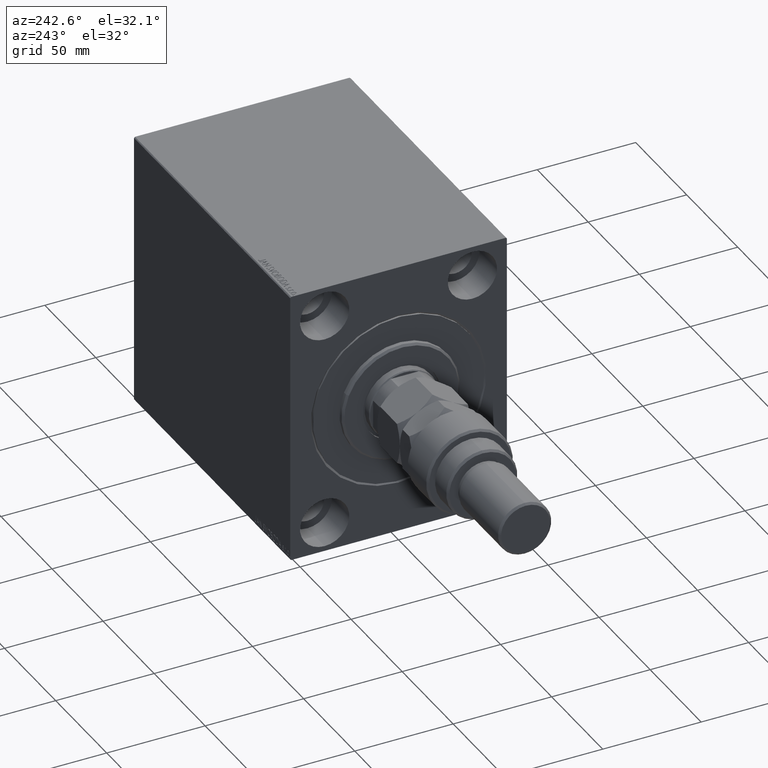
[diagram: clean part render]
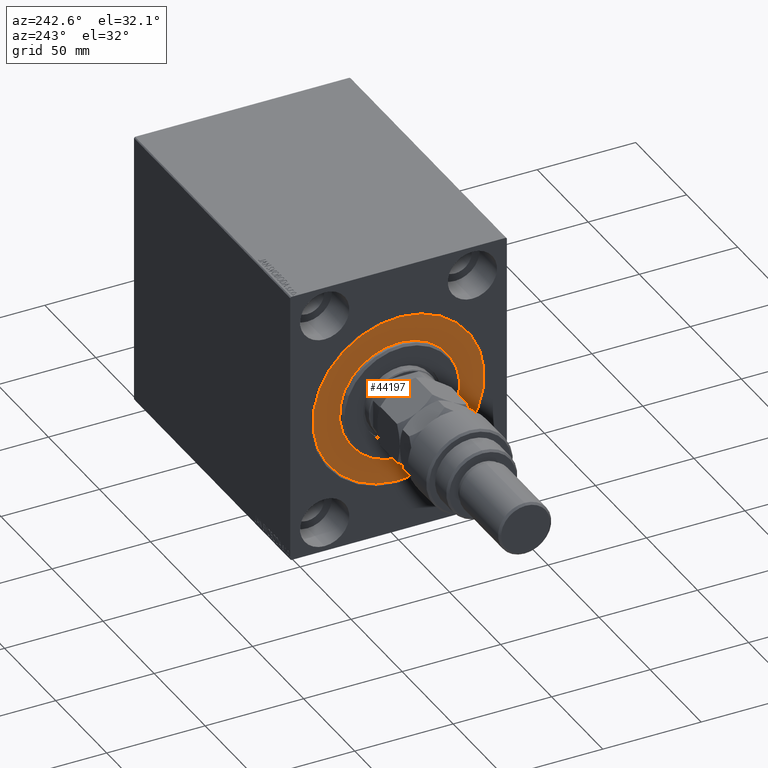
[diagram: same view with one face highlighted and labeled with its STEP entity id]
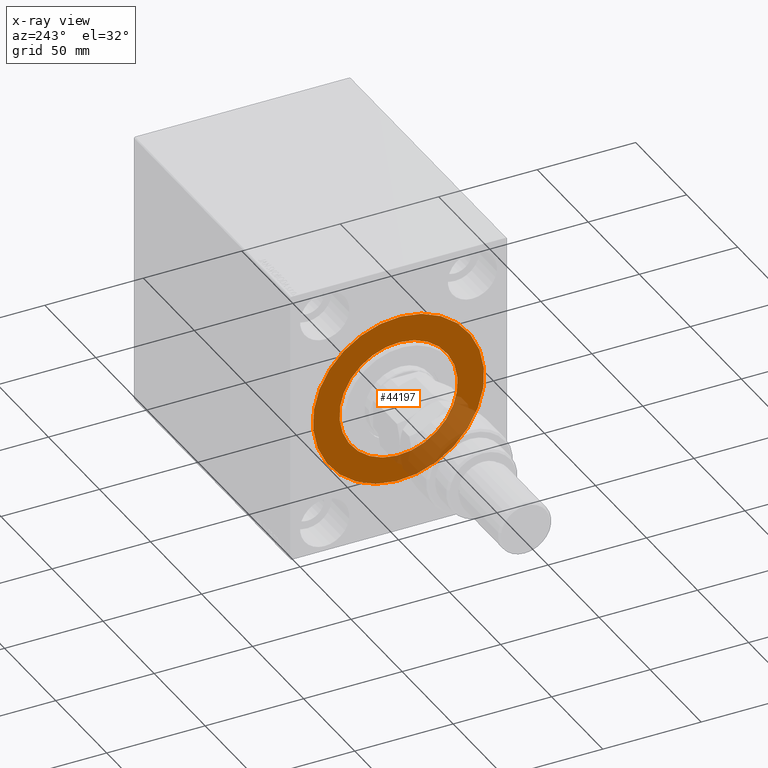
[diagram: x-ray of the same camera — body ghosted, the highlighted face saturated]
A machine part, auxiliary view. The second image highlights one B-rep face of the part: STEP entity #44197.
The next image is the same camera in x-ray: the body ghosted, the highlighted face saturated — about 19% of this face is hidden behind the body in this view.
In plain terms, the highlighted planar face has unit normal (1, 0, -0).
Its self-contained STEP definition (entity closure, byte-faithful):
#1657 = ORIENTED_EDGE ( 'NONE', *, *, #43882, .F. ) ;
#2422 = CIRCLE ( 'NONE', #30319, 43.50000000000000000 ) ;
#4451 = VERTEX_POINT ( 'NONE', #7047 ) ;
#5308 = CARTESIAN_POINT ( 'NONE',  ( 0.000000000000000000, 0.000000000000000000, 0.000000000000000000 ) ) ;
#6035 = EDGE_CURVE ( 'NONE', #4451, #34801, #2422, .T. ) ;
#6601 = CARTESIAN_POINT ( 'NONE',  ( 0.000000000000000000, 0.000000000000000000, 0.000000000000000000 ) ) ;
#6615 = AXIS2_PLACEMENT_3D ( 'NONE', #6601, #43187, #9910 ) ;
#7047 = CARTESIAN_POINT ( 'NONE',  ( 0.000000000000000000, 0.000000000000000000, -43.50000000000000000 ) ) ;
#9059 = VERTEX_POINT ( 'NONE', #20863 ) ;
#9530 = DIRECTION ( 'NONE',  ( 1.000000000000000000, -0.000000000000000000, 0.000000000000000000 ) ) ;
#9910 = DIRECTION ( 'NONE',  ( 0.000000000000000000, 0.000000000000000000, 1.000000000000000000 ) ) ;
#15700 = DIRECTION ( 'NONE',  ( 0.000000000000000000, 0.000000000000000000, -1.000000000000000000 ) ) ;
#15931 = DIRECTION ( 'NONE',  ( 1.000000000000000000, -0.000000000000000000, 0.000000000000000000 ) ) ;
#15932 = VERTEX_POINT ( 'NONE', #18954 ) ;
#16802 = DIRECTION ( 'NONE',  ( -1.000000000000000000, 0.000000000000000000, 0.000000000000000000 ) ) ;
#17591 = AXIS2_PLACEMENT_3D ( 'NONE', #31429, #16802, #20589 ) ;
#18474 = CIRCLE ( 'NONE', #30558, 30.00000000000000000 ) ;
#18482 = EDGE_CURVE ( 'NONE', #15932, #9059, #18474, .T. ) ;
#18954 = CARTESIAN_POINT ( 'NONE',  ( 0.000000000000000000, 0.000000000000000000, 30.00000000000000000 ) ) ;
#20589 = DIRECTION ( 'NONE',  ( 0.000000000000000000, 0.000000000000000000, 1.000000000000000000 ) ) ;
#20863 = CARTESIAN_POINT ( 'NONE',  ( 0.000000000000000000, 3.673940397442059178E-15, -30.00000000000000000 ) ) ;
#22122 = AXIS2_PLACEMENT_3D ( 'NONE', #5308, #15931, #15700 ) ;
#22476 = CIRCLE ( 'NONE', #6615, 43.50000000000000000 ) ;
#23716 = DIRECTION ( 'NONE',  ( 0.000000000000000000, 0.000000000000000000, -1.000000000000000000 ) ) ;
#25271 = EDGE_CURVE ( 'NONE', #34801, #4451, #22476, .T. ) ;
#27301 = EDGE_LOOP ( 'NONE', ( #29281, #46688 ) ) ;
#29281 = ORIENTED_EDGE ( 'NONE', *, *, #6035, .F. ) ;
#30319 = AXIS2_PLACEMENT_3D ( 'NONE', #34140, #41003, #37455 ) ;
#30411 = CIRCLE ( 'NONE', #22122, 30.00000000000000000 ) ;
#30558 = AXIS2_PLACEMENT_3D ( 'NONE', #30783, #9530, #23716 ) ;
#30783 = CARTESIAN_POINT ( 'NONE',  ( 0.000000000000000000, 0.000000000000000000, 0.000000000000000000 ) ) ;
#31429 = CARTESIAN_POINT ( 'NONE',  ( 0.000000000000000000, 0.000000000000000000, 0.000000000000000000 ) ) ;
#34140 = CARTESIAN_POINT ( 'NONE',  ( 0.000000000000000000, 0.000000000000000000, 0.000000000000000000 ) ) ;
#34801 = VERTEX_POINT ( 'NONE', #42211 ) ;
#37455 = DIRECTION ( 'NONE',  ( 0.000000000000000000, 0.000000000000000000, 1.000000000000000000 ) ) ;
#38054 = FACE_OUTER_BOUND ( 'NONE', #27301, .T. ) ;
#41003 = DIRECTION ( 'NONE',  ( -1.000000000000000000, 0.000000000000000000, 0.000000000000000000 ) ) ;
#41601 = FACE_BOUND ( 'NONE', #41686, .T. ) ;
#41686 = EDGE_LOOP ( 'NONE', ( #44530, #1657 ) ) ;
#42071 = PLANE ( 'NONE',  #17591 ) ;
#42211 = CARTESIAN_POINT ( 'NONE',  ( 0.000000000000000000, 5.327213576290986044E-15, 43.50000000000000000 ) ) ;
#43187 = DIRECTION ( 'NONE',  ( -1.000000000000000000, 0.000000000000000000, 0.000000000000000000 ) ) ;
#43882 = EDGE_CURVE ( 'NONE', #9059, #15932, #30411, .T. ) ;
#44197 = ADVANCED_FACE ( 'NONE', ( #41601, #38054 ), #42071, .F. ) ;
#44530 = ORIENTED_EDGE ( 'NONE', *, *, #18482, .F. ) ;
#46688 = ORIENTED_EDGE ( 'NONE', *, *, #25271, .F. ) ;